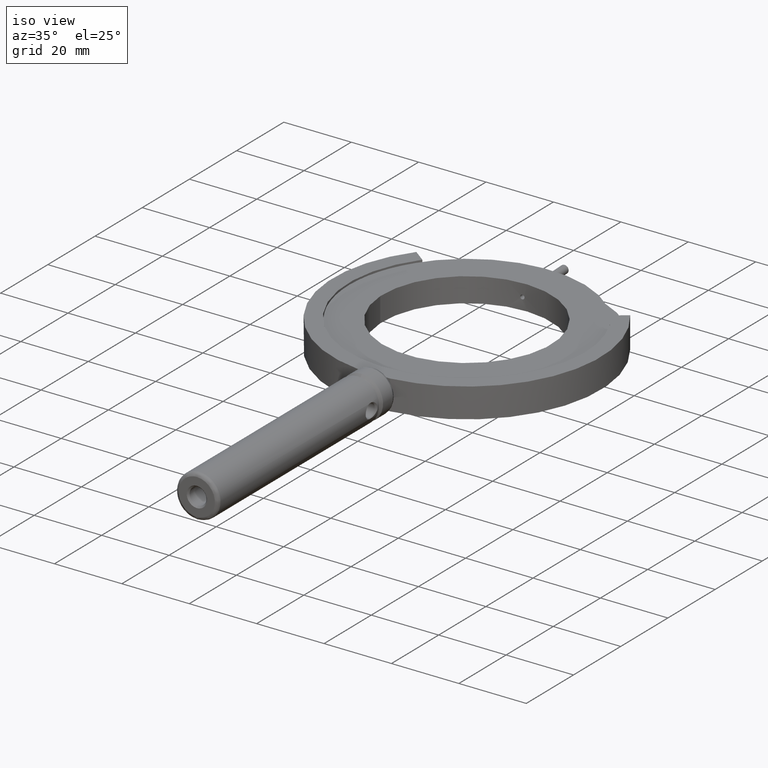
[diagram: clean part render]
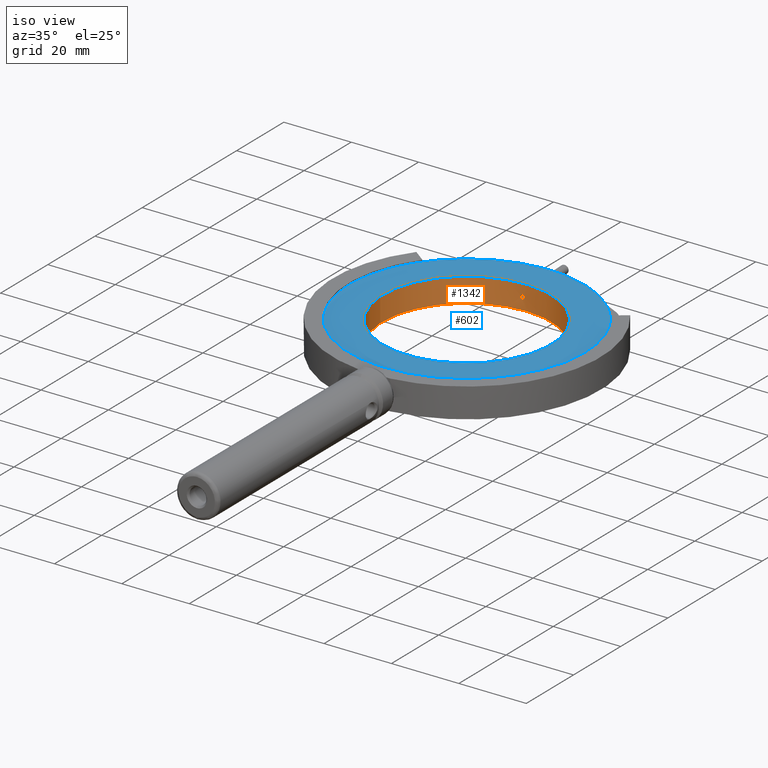
[diagram: same view with the hole feature highlighted: cylindrical wall and planar end face, labeled with their STEP entity ids]
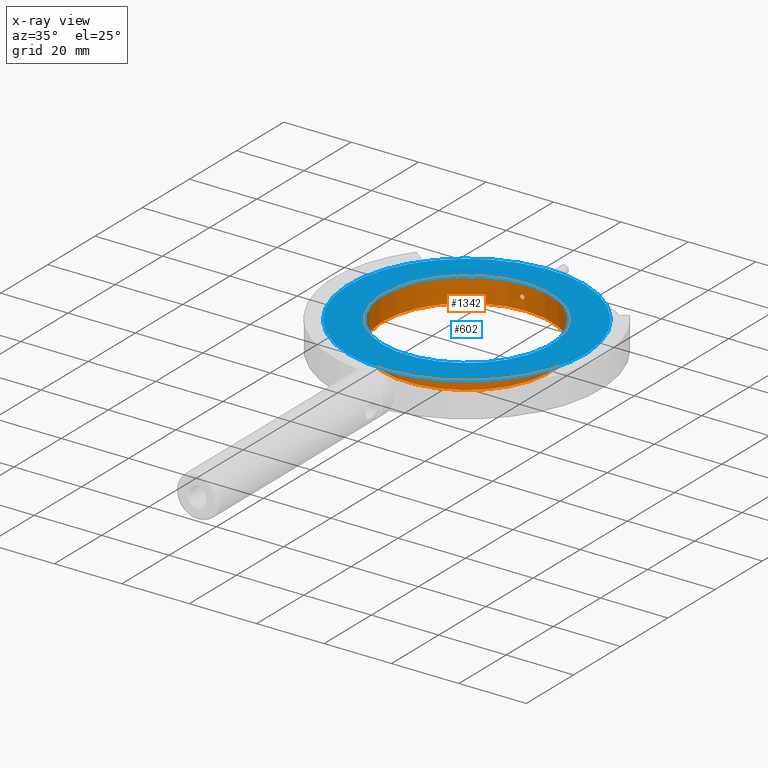
[diagram: x-ray of the same camera — body ghosted, the hole faces saturated]
A machine part, iso view. The highlighted faces form one hole feature of diameter 50 mm: the cylindrical wall (entity #1342, orange) and its adjacent planar end face (entity #602, blue) — they share a circular edge in the B-rep.
The next image is the same camera in x-ray (body ghosted, the hole faces saturated) — the bore reads through the body.
Wall:
#12 = DIRECTION ( 'NONE',  ( -0.000000000000000000, 0.000000000000000000, 1.000000000000000000 ) ) ;
#17 = AXIS2_PLACEMENT_3D ( 'NONE', #876, #12, #1169 ) ;
#35 = CARTESIAN_POINT ( 'NONE',  ( -3.673528993849423774, 14.86125770080604447, 80.12800000000000011 ) ) ;
#46 = CARTESIAN_POINT ( 'NONE',  ( -3.591019193079981520, 14.86458402886320407, 78.87800000000000011 ) ) ;
#55 = CARTESIAN_POINT ( 'NONE',  ( -4.215086748702010944, 14.83160785865707432, 79.66645324203648215 ) ) ;
#64 = DIRECTION ( 'NONE',  ( -0.9991883662406415567, -0.04028161825643756383, 0.000000000000000000 ) ) ;
#121 = ORIENTED_EDGE ( 'NONE', *, *, #1390, .F. ) ;
#177 = CARTESIAN_POINT ( 'NONE',  ( -3.265518645176135770, 14.87585518641035875, 80.06136309468126910 ) ) ;
#185 = CARTESIAN_POINT ( 'NONE',  ( -3.916370828034076101, 14.84961650950835654, 78.94463697552116344 ) ) ;
#195 = CARTESIAN_POINT ( 'NONE',  ( -3.591019193079981520, 14.86458402886320407, 78.87800000000000011 ) ) ;
#197 = CIRCLE ( 'NONE', #979, 25.00000000000000355 ) ;
#203 = EDGE_LOOP ( 'NONE', ( #816 ) ) ;
#210 = EDGE_CURVE ( 'NONE', #1505, #1505, #1718, .T. ) ;
#228 = CARTESIAN_POINT ( 'NONE',  ( -27.56368789268543651, -11.12216558356379181, 83.25300000000001432 ) ) ;
#240 = EDGE_LOOP ( 'NONE', ( #121 ) ) ;
#322 = CARTESIAN_POINT ( 'NONE',  ( -3.033976920235800456, 14.88109060964820607, 79.17637565530969823 ) ) ;
#330 = CARTESIAN_POINT ( 'NONE',  ( -3.427529326704902068, 14.87075390080731374, 78.89425550049004698 ) ) ;
#477 = CARTESIAN_POINT ( 'NONE',  ( -4.215307310092053505, 14.83159343657309570, 79.34039385544873824 ) ) ;
#489 = CARTESIAN_POINT ( 'NONE',  ( -27.56368789268543651, -11.12216558356379181, 75.99300000000000921 ) ) ;
#495 = CARTESIAN_POINT ( 'NONE',  ( -4.147582511097872349, 14.83619633592304154, 79.82962428785013742 ) ) ;
#515 = CARTESIAN_POINT ( 'NONE',  ( -2.583978736669392262, -10.11512512715285261, 83.25300000000001432 ) ) ;
#566 = ORIENTED_EDGE ( 'NONE', *, *, #1052, .F. ) ;
#609 = CARTESIAN_POINT ( 'NONE',  ( -3.754475305311522515, 14.85757328886255202, 80.11174445834782887 ) ) ;
#624 = CARTESIAN_POINT ( 'NONE',  ( -3.591019193079982408, 14.86458402886320407, 78.87800000000000011 ) ) ;
#630 = CARTESIAN_POINT ( 'NONE',  ( -3.508509377452878830, 14.86791035751933343, 78.87800000000002854 ) ) ;
#650 = DIRECTION ( 'NONE',  ( 0.000000000000000000, -0.000000000000000000, -1.000000000000000000 ) ) ;
#771 = CARTESIAN_POINT ( 'NONE',  ( -4.149162732374139573, 14.83610315383497635, 79.17812481360957122 ) ) ;
#816 = ORIENTED_EDGE ( 'NONE', *, *, #210, .F. ) ;
#819 = CYLINDRICAL_SURFACE ( 'NONE', #1773, 25.00000000000000355 ) ;
#876 = CARTESIAN_POINT ( 'NONE',  ( -2.583978736669392262, -10.11512512715285261, 75.99300000000000921 ) ) ;
#880 = CARTESIAN_POINT ( 'NONE',  ( -2.966322361696415832, 14.88195096915519855, 79.33954672860588175 ) ) ;
#884 = CIRCLE ( 'NONE', #17, 25.00000000000000355 ) ;
#892 = CARTESIAN_POINT ( 'NONE',  ( -3.032394324435838673, 14.88112493441516904, 79.82787524232449528 ) ) ;
#901 = CARTESIAN_POINT ( 'NONE',  ( -3.276228391870208423, 14.87540345494567084, 78.95698729007328609 ) ) ;
#920 = CARTESIAN_POINT ( 'NONE',  ( -3.756038824334178017, 14.85793137155094357, 78.87799999999992906 ) ) ;
#921 = FACE_OUTER_BOUND ( 'NONE', #1636, .T. ) ;
#929 = FACE_OUTER_BOUND ( 'NONE', #240, .T. ) ;
#979 = AXIS2_PLACEMENT_3D ( 'NONE', #515, #1511, #64 ) ;
#1052 = EDGE_CURVE ( 'NONE', #1613, #1613, #884, .T. ) ;
#1169 = DIRECTION ( 'NONE',  ( -0.9991883662406415567, -0.04028161825643756383, 0.000000000000000000 ) ) ;
#1190 = CARTESIAN_POINT ( 'NONE',  ( -3.206918047621669654, 14.87717911828136330, 79.00341123957007028 ) ) ;
#1212 = CARTESIAN_POINT ( 'NONE',  ( -3.974887805519146777, 14.84621892402918775, 80.00258869541001161 ) ) ;
#1250 = DIRECTION ( 'NONE',  ( -0.9991883662406415567, -0.04028161825643756383, 0.000000000000000000 ) ) ;
#1329 = CARTESIAN_POINT ( 'NONE',  ( -2.966101355089536096, 14.88195434859202315, 79.66560617390896937 ) ) ;
#1342 = ADVANCED_FACE ( 'NONE', ( #921, #929, #1534 ), #819, .F. ) ;
#1390 = EDGE_CURVE ( 'NONE', #1662, #1662, #197, .T. ) ;
#1481 = CARTESIAN_POINT ( 'NONE',  ( -3.905659470586703375, 14.85002835589332904, 80.04901264942070327 ) ) ;
#1505 = VERTEX_POINT ( 'NONE', #624 ) ;
#1511 = DIRECTION ( 'NONE',  ( 0.000000000000000000, -0.000000000000000000, -1.000000000000000000 ) ) ;
#1534 = FACE_BOUND ( 'NONE', #203, .T. ) ;
#1613 = VERTEX_POINT ( 'NONE', #489 ) ;
#1636 = EDGE_LOOP ( 'NONE', ( #566 ) ) ;
#1662 = VERTEX_POINT ( 'NONE', #228 ) ;
#1718 = B_SPLINE_CURVE_WITH_KNOTS ( 'NONE', 3,
 ( #195, #630, #330, #901, #1190, #322, #880, #1329, #892, #177, #1771, #35, #609, #1481, #1212, #495, #55, #477, #771, #185, #920, #46 ),
 .UNSPECIFIED., .T., .F.,
 ( 4, 2, 2, 2, 2, 2, 2, 2, 2, 2, 4 ),
 ( 0.000000000000000000, 0.0002442136026872709269, 0.0004884272053745418538, 0.0009768544107490845750, 0.001465281616123627513, 0.001953708821498170017, 0.002197922424185440836, 0.002442136026872712088, 0.002930563232247224235, 0.003418990437621736381, 0.003907417642996248962 ),
 .UNSPECIFIED. ) ;
#1771 = CARTESIAN_POINT ( 'NONE',  ( -3.425999591542148170, 14.87123668497747531, 80.12800000000002854 ) ) ;
#1773 = AXIS2_PLACEMENT_3D ( 'NONE', #1799, #650, #1250 ) ;
#1799 = CARTESIAN_POINT ( 'NONE',  ( -2.583978736669392262, -10.11512512715285261, 83.25300000000001432 ) ) ;
End face:
#64 = DIRECTION ( 'NONE',  ( -0.9991883662406415567, -0.04028161825643756383, 0.000000000000000000 ) ) ;
#197 = CIRCLE ( 'NONE', #979, 25.00000000000000355 ) ;
#228 = CARTESIAN_POINT ( 'NONE',  ( -27.56368789268543651, -11.12216558356379181, 83.25300000000001432 ) ) ;
#281 = EDGE_LOOP ( 'NONE', ( #688 ) ) ;
#298 = FACE_BOUND ( 'NONE', #537, .T. ) ;
#316 = CIRCLE ( 'NONE', #1313, 35.00000000000001421 ) ;
#515 = CARTESIAN_POINT ( 'NONE',  ( -2.583978736669392262, -10.11512512715285261, 83.25300000000001432 ) ) ;
#537 = EDGE_LOOP ( 'NONE', ( #813 ) ) ;
#602 = ADVANCED_FACE ( 'NONE', ( #1005, #298 ), #1414, .T. ) ;
#617 = DIRECTION ( 'NONE',  ( -0.000000000000000000, 0.000000000000000000, 1.000000000000000000 ) ) ;
#688 = ORIENTED_EDGE ( 'NONE', *, *, #761, .T. ) ;
#761 = EDGE_CURVE ( 'NONE', #783, #783, #316, .T. ) ;
#783 = VERTEX_POINT ( 'NONE', #1352 ) ;
#813 = ORIENTED_EDGE ( 'NONE', *, *, #1390, .T. ) ;
#865 = DIRECTION ( 'NONE',  ( 0.000000000000000000, -0.000000000000000000, 1.000000000000000000 ) ) ;
#979 = AXIS2_PLACEMENT_3D ( 'NONE', #515, #1511, #64 ) ;
#1005 = FACE_OUTER_BOUND ( 'NONE', #281, .T. ) ;
#1187 = CARTESIAN_POINT ( 'NONE',  ( -2.583978736669392262, -10.11512512715285261, 83.25300000000001432 ) ) ;
#1313 = AXIS2_PLACEMENT_3D ( 'NONE', #1187, #617, #1347 ) ;
#1347 = DIRECTION ( 'NONE',  ( -0.9991883662406416677, -0.04028161825643754301, 0.000000000000000000 ) ) ;
#1352 = CARTESIAN_POINT ( 'NONE',  ( -37.55557155509186629, -11.52498176612816749, 83.25300000000001432 ) ) ;
#1390 = EDGE_CURVE ( 'NONE', #1662, #1662, #197, .T. ) ;
#1414 = PLANE ( 'NONE',  #1618 ) ;
#1511 = DIRECTION ( 'NONE',  ( 0.000000000000000000, -0.000000000000000000, -1.000000000000000000 ) ) ;
#1560 = DIRECTION ( 'NONE',  ( 0.9991883662406416677, 0.04028161825643754301, 0.000000000000000000 ) ) ;
#1588 = CARTESIAN_POINT ( 'NONE',  ( -2.583978736669392262, -10.11512512715285261, 83.25300000000001432 ) ) ;
#1618 = AXIS2_PLACEMENT_3D ( 'NONE', #1588, #865, #1560 ) ;
#1662 = VERTEX_POINT ( 'NONE', #228 ) ;